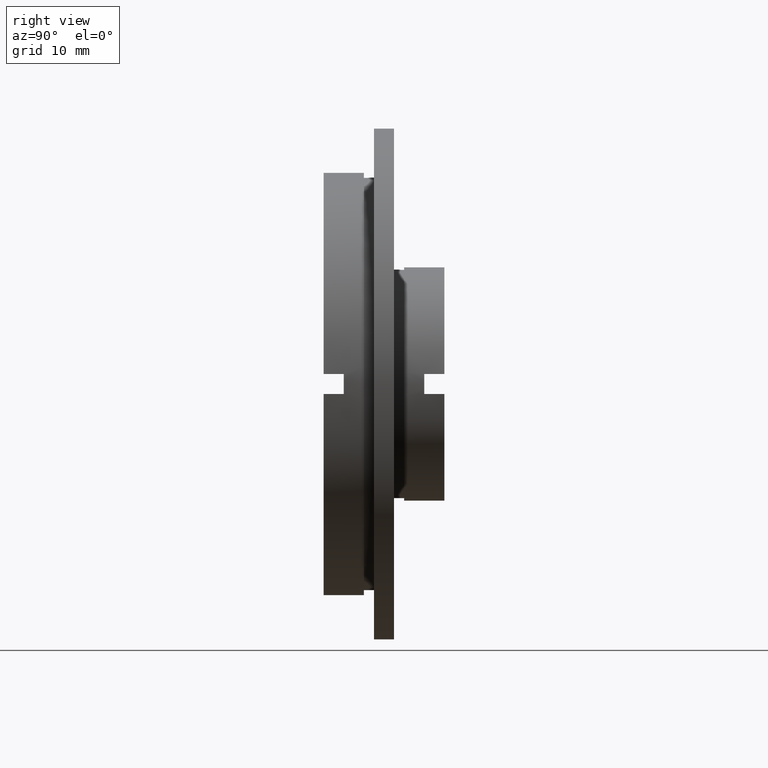
[diagram: clean part render]
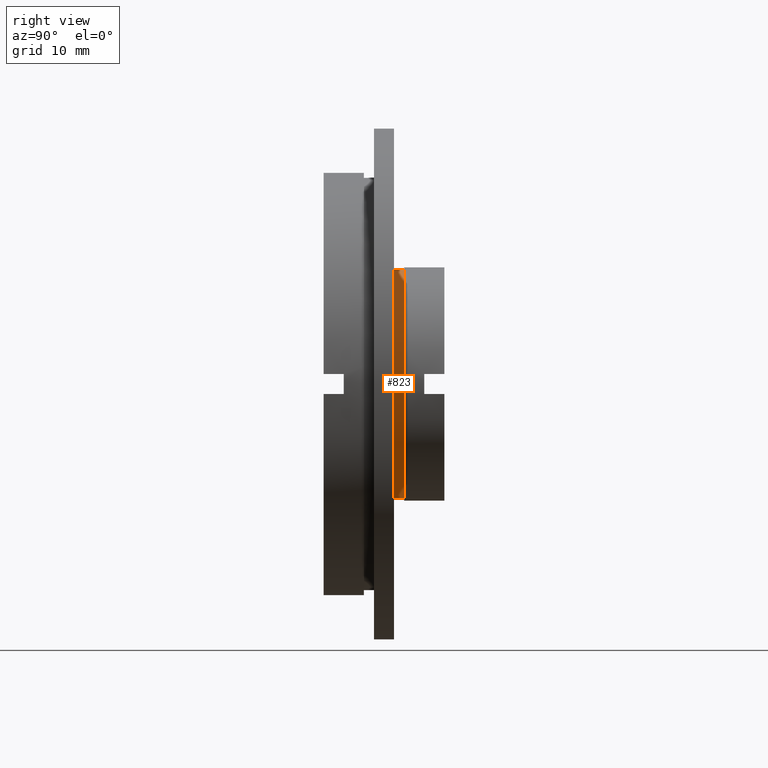
[diagram: same view with one face highlighted and labeled with its STEP entity id]
A machine part, right view. The second image highlights one B-rep face of the part: STEP entity #823.
In plain terms, the highlighted cylindrical surface (partial cylindrical patch) has radius 11.35 mm, axis along (-0, 1, -0).
Its self-contained STEP definition (entity closure, byte-faithful):
#65 = CIRCLE ( 'NONE', #580, 11.34999999999999600 ) ;
#76 = EDGE_CURVE ( 'NONE', #632, #329, #65, .T. ) ;
#88 = CARTESIAN_POINT ( 'NONE',  ( 0.0000000000000000000, 8.000000000000000000, 11.34999999999999800 ) ) ;
#159 = LINE ( 'NONE', #166, #1063 ) ;
#163 = VECTOR ( 'NONE', #524, 1000.000000000000000 ) ;
#166 = CARTESIAN_POINT ( 'NONE',  ( 0.0000000000000000000, 22.67749945107591400, 11.34999999999999600 ) ) ;
#201 = DIRECTION ( 'NONE',  ( 0.0000000000000000000, 0.0000000000000000000, 1.000000000000000000 ) ) ;
#239 = EDGE_LOOP ( 'NONE', ( #383, #1222, #307, #857 ) ) ;
#242 = CARTESIAN_POINT ( 'NONE',  ( 0.0000000000000000000, 22.67749945107591400, 0.0000000000000000000 ) ) ;
#256 = CARTESIAN_POINT ( 'NONE',  ( 1.389974117032245400E-015, 22.67749945107591400, -11.34999999999999600 ) ) ;
#264 = VERTEX_POINT ( 'NONE', #88 ) ;
#307 = ORIENTED_EDGE ( 'NONE', *, *, #827, .F. ) ;
#329 = VERTEX_POINT ( 'NONE', #790 ) ;
#347 = CARTESIAN_POINT ( 'NONE',  ( 0.0000000000000000000, 8.000000000000000000, 0.0000000000000000000 ) ) ;
#376 = DIRECTION ( 'NONE',  ( 0.0000000000000000000, 0.0000000000000000000, 1.000000000000000000 ) ) ;
#383 = ORIENTED_EDGE ( 'NONE', *, *, #76, .T. ) ;
#387 = FACE_OUTER_BOUND ( 'NONE', #239, .T. ) ;
#410 = CARTESIAN_POINT ( 'NONE',  ( 0.0000000000000000000, 6.999999999999999100, 0.0000000000000000000 ) ) ;
#524 = DIRECTION ( 'NONE',  ( -0.0000000000000000000, 1.000000000000000000, -0.0000000000000000000 ) ) ;
#528 = DIRECTION ( 'NONE',  ( -0.0000000000000000000, 1.000000000000000000, -0.0000000000000000000 ) ) ;
#574 = AXIS2_PLACEMENT_3D ( 'NONE', #347, #1124, #201 ) ;
#580 = AXIS2_PLACEMENT_3D ( 'NONE', #410, #528, #1195 ) ;
#613 = LINE ( 'NONE', #256, #163 ) ;
#632 = VERTEX_POINT ( 'NONE', #786 ) ;
#633 = AXIS2_PLACEMENT_3D ( 'NONE', #242, #1172, #376 ) ;
#670 = CYLINDRICAL_SURFACE ( 'NONE', #633, 11.34999999999999600 ) ;
#786 = CARTESIAN_POINT ( 'NONE',  ( 0.0000000000000000000, 6.999999999999999100, 11.34999999999999600 ) ) ;
#790 = CARTESIAN_POINT ( 'NONE',  ( 1.389974117032245400E-015, 6.999999999999999100, -11.34999999999999600 ) ) ;
#814 = CIRCLE ( 'NONE', #574, 11.34999999999999800 ) ;
#823 = ADVANCED_FACE ( 'NONE', ( #387 ), #670, .T. ) ;
#827 = EDGE_CURVE ( 'NONE', #264, #992, #814, .T. ) ;
#857 = ORIENTED_EDGE ( 'NONE', *, *, #1070, .F. ) ;
#977 = CARTESIAN_POINT ( 'NONE',  ( 1.389974117032245700E-015, 8.000000000000000000, -11.34999999999999800 ) ) ;
#992 = VERTEX_POINT ( 'NONE', #977 ) ;
#1062 = DIRECTION ( 'NONE',  ( -0.0000000000000000000, 1.000000000000000000, -0.0000000000000000000 ) ) ;
#1063 = VECTOR ( 'NONE', #1062, 1000.000000000000000 ) ;
#1070 = EDGE_CURVE ( 'NONE', #632, #264, #159, .T. ) ;
#1124 = DIRECTION ( 'NONE',  ( -0.0000000000000000000, 1.000000000000000000, -0.0000000000000000000 ) ) ;
#1127 = EDGE_CURVE ( 'NONE', #329, #992, #613, .T. ) ;
#1172 = DIRECTION ( 'NONE',  ( -0.0000000000000000000, 1.000000000000000000, -0.0000000000000000000 ) ) ;
#1195 = DIRECTION ( 'NONE',  ( 0.0000000000000000000, 0.0000000000000000000, 1.000000000000000000 ) ) ;
#1222 = ORIENTED_EDGE ( 'NONE', *, *, #1127, .T. ) ;